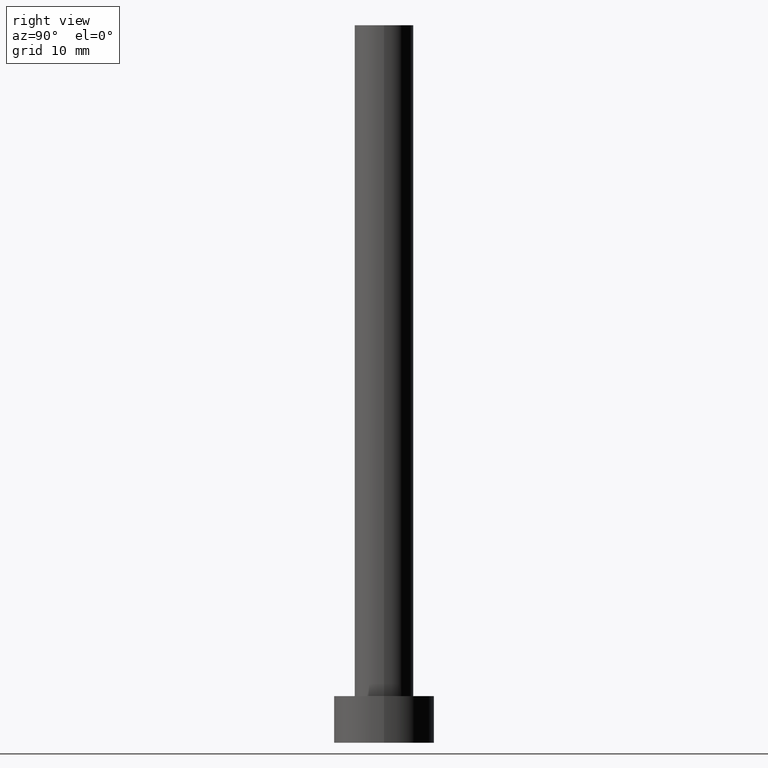
[diagram: clean part render]
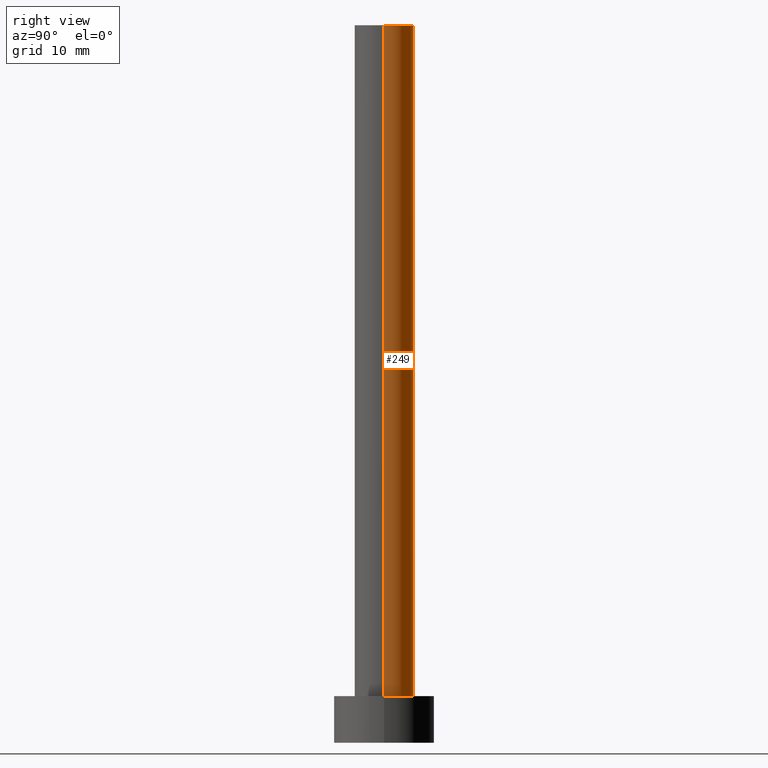
[diagram: same view with one face highlighted and labeled with its STEP entity id]
A machine part, right view. The second image highlights one B-rep face of the part: STEP entity #249.
In plain terms, the highlighted cylindrical surface (edge-blend (fillet) strip) has radius 4.1 mm, axis along (-0, -0, -1).
Its self-contained STEP definition (entity closure, byte-faithful):
#25 = DIRECTION ( 'NONE',  ( 0.000000000000000000, 0.000000000000000000, 1.000000000000000000 ) ) ;
#40 = CARTESIAN_POINT ( 'NONE',  ( 0.000000000000000000, 0.000000000000000000, 100.0000000000000000 ) ) ;
#54 = EDGE_CURVE ( 'NONE', #77, #184, #182, .T. ) ;
#70 = CARTESIAN_POINT ( 'NONE',  ( 4.099999999999999645, 5.021051876504147385E-16, 100.0000000000000000 ) ) ;
#72 = DIRECTION ( 'NONE',  ( -0.000000000000000000, -0.000000000000000000, -1.000000000000000000 ) ) ;
#75 = CARTESIAN_POINT ( 'NONE',  ( 4.099999999999999645, 5.021051876504147385E-16, 6.500000000000000000 ) ) ;
#76 = CYLINDRICAL_SURFACE ( 'NONE', #87, 4.099999999999999645 ) ;
#77 = VERTEX_POINT ( 'NONE', #70 ) ;
#83 = VERTEX_POINT ( 'NONE', #217 ) ;
#85 = AXIS2_PLACEMENT_3D ( 'NONE', #149, #25, #115 ) ;
#87 = AXIS2_PLACEMENT_3D ( 'NONE', #204, #98, #239 ) ;
#88 = CARTESIAN_POINT ( 'NONE',  ( 4.099999999999999645, 5.021051876504147385E-16, 100.0000000000000000 ) ) ;
#98 = DIRECTION ( 'NONE',  ( -0.000000000000000000, -0.000000000000000000, -1.000000000000000000 ) ) ;
#99 = ORIENTED_EDGE ( 'NONE', *, *, #173, .T. ) ;
#108 = LINE ( 'NONE', #88, #166 ) ;
#115 = DIRECTION ( 'NONE',  ( 1.000000000000000000, 0.000000000000000000, 0.000000000000000000 ) ) ;
#122 = VERTEX_POINT ( 'NONE', #75 ) ;
#138 = CARTESIAN_POINT ( 'NONE',  ( -4.099999999999999645, 0.000000000000000000, 100.0000000000000000 ) ) ;
#149 = CARTESIAN_POINT ( 'NONE',  ( 0.000000000000000000, 0.000000000000000000, 6.500000000000000000 ) ) ;
#160 = CIRCLE ( 'NONE', #85, 4.099999999999999645 ) ;
#162 = DIRECTION ( 'NONE',  ( 1.000000000000000000, 0.000000000000000000, 0.000000000000000000 ) ) ;
#166 = VECTOR ( 'NONE', #72, 1000.000000000000000 ) ;
#171 = EDGE_CURVE ( 'NONE', #77, #122, #108, .T. ) ;
#173 = EDGE_CURVE ( 'NONE', #122, #83, #160, .T. ) ;
#180 = FACE_OUTER_BOUND ( 'NONE', #185, .T. ) ;
#182 = CIRCLE ( 'NONE', #237, 4.099999999999999645 ) ;
#183 = DIRECTION ( 'NONE',  ( -0.000000000000000000, -0.000000000000000000, -1.000000000000000000 ) ) ;
#184 = VERTEX_POINT ( 'NONE', #247 ) ;
#185 = EDGE_LOOP ( 'NONE', ( #199, #250, #99, #223 ) ) ;
#197 = EDGE_CURVE ( 'NONE', #184, #83, #242, .T. ) ;
#199 = ORIENTED_EDGE ( 'NONE', *, *, #54, .F. ) ;
#203 = DIRECTION ( 'NONE',  ( 0.000000000000000000, 0.000000000000000000, 1.000000000000000000 ) ) ;
#204 = CARTESIAN_POINT ( 'NONE',  ( 0.000000000000000000, 0.000000000000000000, 100.0000000000000000 ) ) ;
#217 = CARTESIAN_POINT ( 'NONE',  ( -4.099999999999999645, 0.000000000000000000, 6.500000000000000000 ) ) ;
#223 = ORIENTED_EDGE ( 'NONE', *, *, #197, .F. ) ;
#237 = AXIS2_PLACEMENT_3D ( 'NONE', #40, #203, #162 ) ;
#238 = VECTOR ( 'NONE', #183, 1000.000000000000000 ) ;
#239 = DIRECTION ( 'NONE',  ( -1.000000000000000000, 0.000000000000000000, 0.000000000000000000 ) ) ;
#242 = LINE ( 'NONE', #138, #238 ) ;
#247 = CARTESIAN_POINT ( 'NONE',  ( -4.099999999999999645, 0.000000000000000000, 100.0000000000000000 ) ) ;
#249 = ADVANCED_FACE ( 'NONE', ( #180 ), #76, .T. ) ;
#250 = ORIENTED_EDGE ( 'NONE', *, *, #171, .T. ) ;